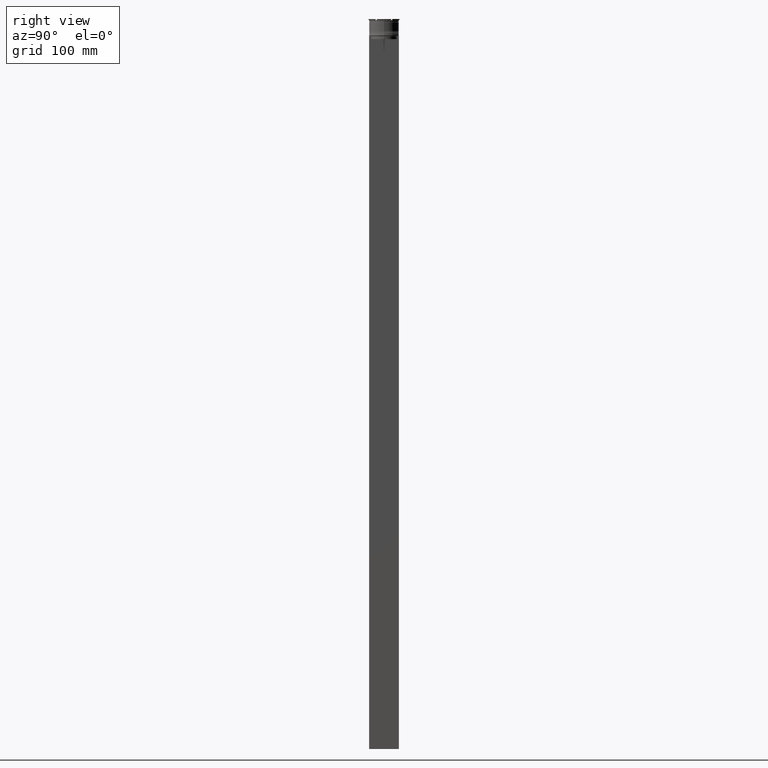
[diagram: clean part render]
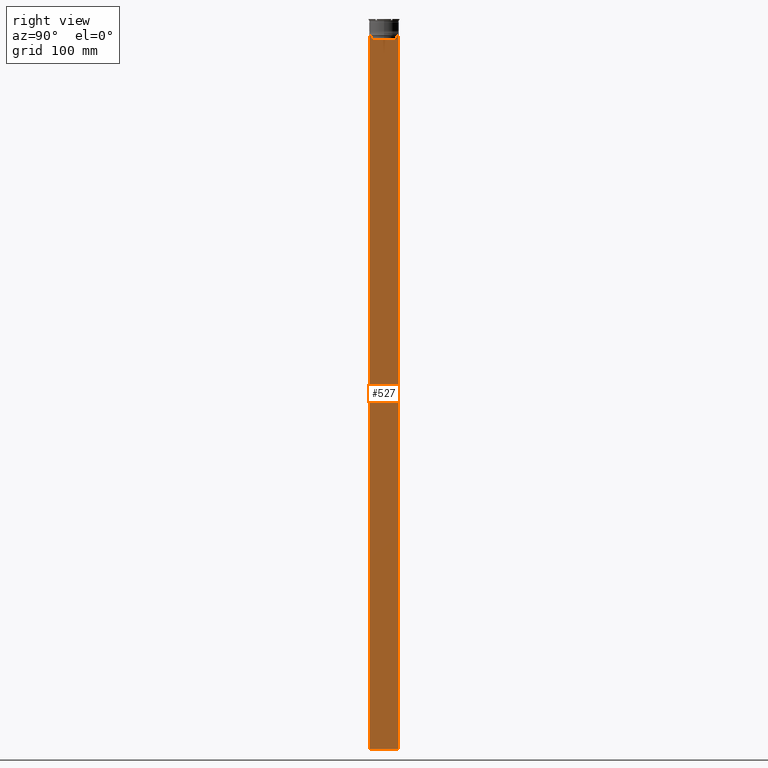
[diagram: same view with one face highlighted and labeled with its STEP entity id]
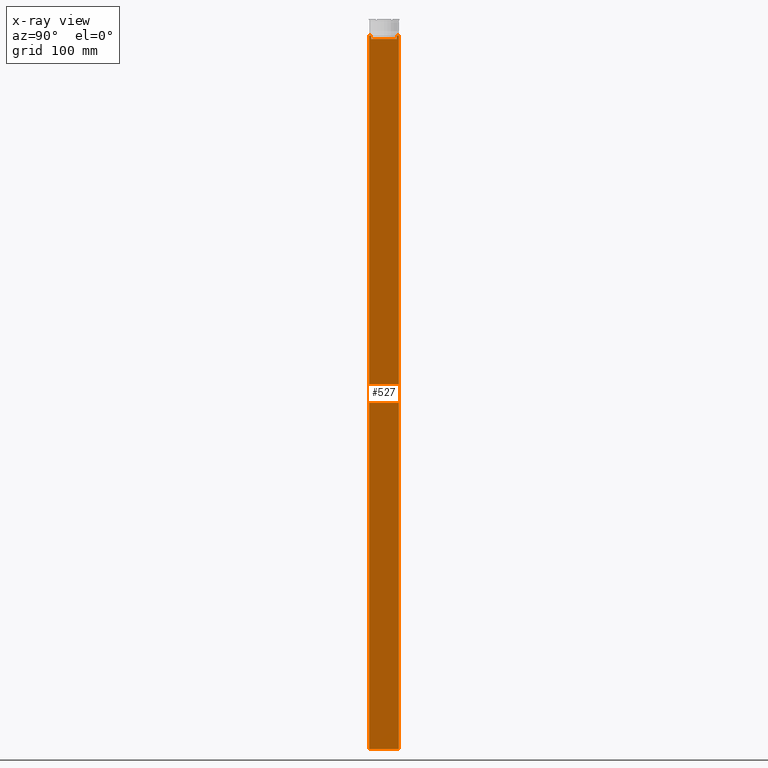
[diagram: x-ray of the same camera — body ghosted, the highlighted face saturated]
A machine part, right view. The second image highlights one B-rep face of the part: STEP entity #527.
The next image is the same camera in x-ray: the body ghosted, the highlighted face saturated — about 0% of this face is hidden behind the body in this view.
In plain terms, the highlighted planar face has unit normal (-1, 0, 0).
Its self-contained STEP definition (entity closure, byte-faithful):
#19 = CARTESIAN_POINT ( 'NONE',  ( 0.5000000000000000000, -12.49999999999999289, -614.0000000000000000 ) ) ;
#83 = CARTESIAN_POINT ( 'NONE',  ( 0.5000000000000000000, 10.88852607105296322, -14.50000000000000000 ) ) ;
#100 = VECTOR ( 'NONE', #2206, 1000.000000000000000 ) ;
#116 = ORIENTED_EDGE ( 'NONE', *, *, #2784, .T. ) ;
#156 = EDGE_CURVE ( 'NONE', #719, #1729, #1577, .T. ) ;
#160 = ORIENTED_EDGE ( 'NONE', *, *, #2249, .T. ) ;
#223 = VERTEX_POINT ( 'NONE', #788 ) ;
#228 = DIRECTION ( 'NONE',  ( -1.000000000000000000, 0.000000000000000000, 0.000000000000000000 ) ) ;
#260 = ORIENTED_EDGE ( 'NONE', *, *, #2517, .T. ) ;
#298 = CARTESIAN_POINT ( 'NONE',  ( 0.5000000000000000000, -10.88852607105296322, -14.50000000000000000 ) ) ;
#335 = CARTESIAN_POINT ( 'NONE',  ( 0.5000000000000000000, 11.38902980942626719, -14.00000000000000178 ) ) ;
#503 = DIRECTION ( 'NONE',  ( 0.000000000000000000, -1.000000000000000000, 0.000000000000000000 ) ) ;
#513 = EDGE_CURVE ( 'NONE', #2648, #1550, #1376, .T. ) ;
#514 = VERTEX_POINT ( 'NONE', #1789 ) ;
#527 = ADVANCED_FACE ( 'NONE', ( #2711 ), #2252, .F. ) ;
#539 = VECTOR ( 'NONE', #771, 1000.000000000000000 ) ;
#630 = CARTESIAN_POINT ( 'NONE',  ( 0.5000000000000000000, -12.49999999999999289, -14.00000000000000178 ) ) ;
#692 = DIRECTION ( 'NONE',  ( 0.000000000000000000, -1.000000000000000000, 0.000000000000000000 ) ) ;
#702 = VERTEX_POINT ( 'NONE', #2545 ) ;
#709 = CARTESIAN_POINT ( 'NONE',  ( 0.5000000000000000000, -11.05536450423839234, -14.33333718996393102 ) ) ;
#719 = VERTEX_POINT ( 'NONE', #1197 ) ;
#726 = VECTOR ( 'NONE', #2416, 1000.000000000000000 ) ;
#730 = LINE ( 'NONE', #1790, #100 ) ;
#732 = EDGE_LOOP ( 'NONE', ( #1252, #160, #2646, #2864, #829, #2202, #260, #891, #1074, #116, #1411, #988 ) ) ;
#770 = VECTOR ( 'NONE', #2875, 1000.000000000000000 ) ;
#771 = DIRECTION ( 'NONE',  ( 0.000000000000000000, -1.000000000000000000, 0.000000000000000000 ) ) ;
#773 = CARTESIAN_POINT ( 'NONE',  ( 0.5000000000000000000, 11.22219891375843304, -14.16667035472756808 ) ) ;
#788 = CARTESIAN_POINT ( 'NONE',  ( 0.5000000000000000000, 12.38991525394746773, -14.00000000000000178 ) ) ;
#806 = VERTEX_POINT ( 'NONE', #1135 ) ;
#819 = VERTEX_POINT ( 'NONE', #19 ) ;
#829 = ORIENTED_EDGE ( 'NONE', *, *, #1695, .T. ) ;
#837 = B_SPLINE_CURVE_WITH_KNOTS ( 'NONE', 3,
 ( #298, #709, #1391, #1779 ),
 .UNSPECIFIED., .F., .F.,
 ( 4, 4 ),
 ( 0.05041323384703226551, 0.05112713601261605068 ),
 .UNSPECIFIED. ) ;
#850 = EDGE_CURVE ( 'NONE', #1550, #1372, #1295, .T. ) ;
#851 = CARTESIAN_POINT ( 'NONE',  ( 0.5000000000000000000, -10.88852607105296322, 0.000000000000000000 ) ) ;
#891 = ORIENTED_EDGE ( 'NONE', *, *, #1735, .T. ) ;
#906 = VECTOR ( 'NONE', #2631, 1000.000000000000000 ) ;
#988 = ORIENTED_EDGE ( 'NONE', *, *, #2788, .T. ) ;
#1066 = LINE ( 'NONE', #630, #2275 ) ;
#1074 = ORIENTED_EDGE ( 'NONE', *, *, #2589, .T. ) ;
#1135 = CARTESIAN_POINT ( 'NONE',  ( 0.5000000000000000000, -11.38902980942626719, -14.00000000000000178 ) ) ;
#1160 = DIRECTION ( 'NONE',  ( 0.000000000000000000, 0.000000000000000000, -1.000000000000000000 ) ) ;
#1197 = CARTESIAN_POINT ( 'NONE',  ( 0.5000000000000000000, 12.50000000000000711, -14.00000000000000178 ) ) ;
#1252 = ORIENTED_EDGE ( 'NONE', *, *, #1365, .T. ) ;
#1295 = LINE ( 'NONE', #2182, #770 ) ;
#1322 = CARTESIAN_POINT ( 'NONE',  ( 0.5000000000000000000, -12.49999999999999289, -14.00000000000000178 ) ) ;
#1338 = DIRECTION ( 'NONE',  ( 0.000000000000000000, 0.000000000000000000, 1.000000000000000000 ) ) ;
#1365 = EDGE_CURVE ( 'NONE', #223, #514, #1674, .T. ) ;
#1372 = VERTEX_POINT ( 'NONE', #1633 ) ;
#1376 = LINE ( 'NONE', #1986, #2578 ) ;
#1377 = LINE ( 'NONE', #2437, #2745 ) ;
#1391 = CARTESIAN_POINT ( 'NONE',  ( 0.5000000000000000000, -11.22219891450652973, -14.16667035398018903 ) ) ;
#1411 = ORIENTED_EDGE ( 'NONE', *, *, #156, .F. ) ;
#1460 = CARTESIAN_POINT ( 'NONE',  ( 0.5000000000000000000, -12.49999999999999289, -14.00000000000000178 ) ) ;
#1550 = VERTEX_POINT ( 'NONE', #2158 ) ;
#1577 = LINE ( 'NONE', #2029, #1639 ) ;
#1601 = CARTESIAN_POINT ( 'NONE',  ( 0.5000000000000000000, -10.88852607105296322, -14.50000000000000000 ) ) ;
#1633 = CARTESIAN_POINT ( 'NONE',  ( 0.5000000000000000000, -10.88852607105296144, -17.00000000000000000 ) ) ;
#1639 = VECTOR ( 'NONE', #2267, 1000.000000000000000 ) ;
#1674 = LINE ( 'NONE', #1460, #539 ) ;
#1695 = EDGE_CURVE ( 'NONE', #1372, #2520, #1969, .T. ) ;
#1729 = VERTEX_POINT ( 'NONE', #2797 ) ;
#1735 = EDGE_CURVE ( 'NONE', #702, #2164, #1066, .T. ) ;
#1739 = AXIS2_PLACEMENT_3D ( 'NONE', #2265, #228, #1338 ) ;
#1779 = CARTESIAN_POINT ( 'NONE',  ( 0.5000000000000000000, -11.38902980942626719, -14.00000000000000178 ) ) ;
#1789 = CARTESIAN_POINT ( 'NONE',  ( 0.5000000000000000000, 11.38902980942626719, -14.00000000000000178 ) ) ;
#1790 = CARTESIAN_POINT ( 'NONE',  ( 0.5000000000000000000, -12.49999999999999289, 11.01999200639360765 ) ) ;
#1812 = DIRECTION ( 'NONE',  ( 0.000000000000000000, -1.000000000000000000, 0.000000000000000000 ) ) ;
#1901 = LINE ( 'NONE', #1322, #2180 ) ;
#1969 = LINE ( 'NONE', #851, #726 ) ;
#1986 = CARTESIAN_POINT ( 'NONE',  ( 0.5000000000000000000, 10.88852607105296322, 0.000000000000000000 ) ) ;
#2029 = CARTESIAN_POINT ( 'NONE',  ( 0.5000000000000000000, 12.50000000000000711, 11.01999200639360765 ) ) ;
#2068 = EDGE_CURVE ( 'NONE', #2520, #806, #837, .T. ) ;
#2158 = CARTESIAN_POINT ( 'NONE',  ( 0.5000000000000000000, 10.88852607105296144, -17.00000000000000000 ) ) ;
#2164 = VERTEX_POINT ( 'NONE', #2453 ) ;
#2180 = VECTOR ( 'NONE', #692, 1000.000000000000000 ) ;
#2182 = CARTESIAN_POINT ( 'NONE',  ( 0.5000000000000000000, 10.90000000000000213, -17.00000000000000000 ) ) ;
#2187 = CARTESIAN_POINT ( 'NONE',  ( 0.5000000000000000000, -12.49999999999999289, -614.0000000000000000 ) ) ;
#2202 = ORIENTED_EDGE ( 'NONE', *, *, #2068, .T. ) ;
#2206 = DIRECTION ( 'NONE',  ( 0.000000000000000000, 0.000000000000000000, -1.000000000000000000 ) ) ;
#2249 = EDGE_CURVE ( 'NONE', #514, #2648, #2826, .T. ) ;
#2252 = PLANE ( 'NONE',  #1739 ) ;
#2265 = CARTESIAN_POINT ( 'NONE',  ( 0.5000000000000000000, -12.49999999999999289, 11.01999200639360765 ) ) ;
#2267 = DIRECTION ( 'NONE',  ( 0.000000000000000000, 0.000000000000000000, -1.000000000000000000 ) ) ;
#2275 = VECTOR ( 'NONE', #1812, 1000.000000000000000 ) ;
#2416 = DIRECTION ( 'NONE',  ( -0.000000000000000000, -0.000000000000000000, 1.000000000000000000 ) ) ;
#2428 = LINE ( 'NONE', #2187, #906 ) ;
#2437 = CARTESIAN_POINT ( 'NONE',  ( 0.5000000000000000000, -12.49999999999999289, -14.00000000000000178 ) ) ;
#2453 = CARTESIAN_POINT ( 'NONE',  ( 0.5000000000000000000, -12.49999999999999289, -14.00000000000000178 ) ) ;
#2462 = CARTESIAN_POINT ( 'NONE',  ( 0.5000000000000000000, 10.88852607105296322, -14.50000000000000000 ) ) ;
#2517 = EDGE_CURVE ( 'NONE', #806, #702, #1377, .T. ) ;
#2520 = VERTEX_POINT ( 'NONE', #1601 ) ;
#2545 = CARTESIAN_POINT ( 'NONE',  ( 0.5000000000000000000, -12.38991525394746773, -14.00000000000000178 ) ) ;
#2578 = VECTOR ( 'NONE', #1160, 1000.000000000000000 ) ;
#2589 = EDGE_CURVE ( 'NONE', #2164, #819, #730, .T. ) ;
#2631 = DIRECTION ( 'NONE',  ( 0.000000000000000000, 1.000000000000000000, 0.000000000000000000 ) ) ;
#2646 = ORIENTED_EDGE ( 'NONE', *, *, #513, .T. ) ;
#2648 = VERTEX_POINT ( 'NONE', #2462 ) ;
#2711 = FACE_OUTER_BOUND ( 'NONE', #732, .T. ) ;
#2745 = VECTOR ( 'NONE', #503, 1000.000000000000000 ) ;
#2784 = EDGE_CURVE ( 'NONE', #819, #1729, #2428, .T. ) ;
#2785 = CARTESIAN_POINT ( 'NONE',  ( 0.5000000000000000000, 11.05536450345590538, -14.33333719074559376 ) ) ;
#2788 = EDGE_CURVE ( 'NONE', #719, #223, #1901, .T. ) ;
#2797 = CARTESIAN_POINT ( 'NONE',  ( 0.5000000000000000000, 12.50000000000000711, -614.0000000000000000 ) ) ;
#2826 = B_SPLINE_CURVE_WITH_KNOTS ( 'NONE', 3,
 ( #335, #773, #2785, #83 ),
 .UNSPECIFIED., .F., .F.,
 ( 4, 4 ),
 ( 0.01935560801904634073, 0.02006307108468586772 ),
 .UNSPECIFIED. ) ;
#2864 = ORIENTED_EDGE ( 'NONE', *, *, #850, .T. ) ;
#2875 = DIRECTION ( 'NONE',  ( 0.000000000000000000, -1.000000000000000000, 0.000000000000000000 ) ) ;